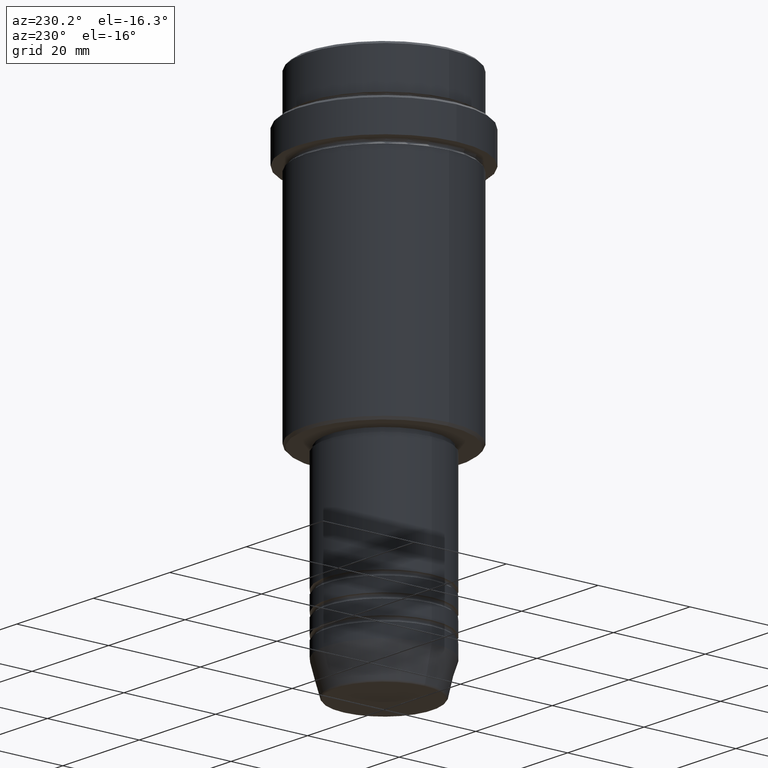
[diagram: clean part render]
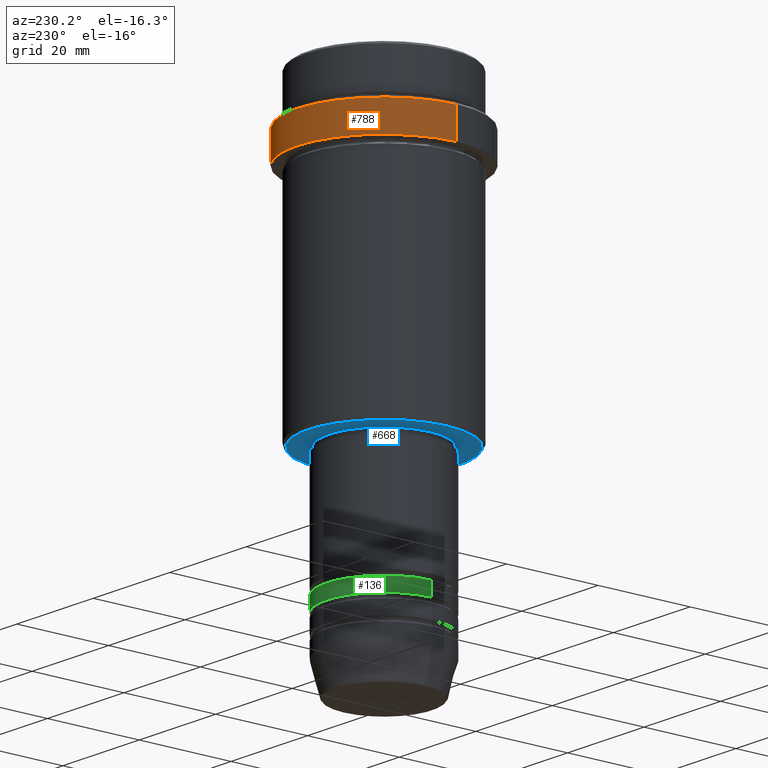
[diagram: same view with three faces highlighted in distinct colors, each labeled with its STEP entity id]
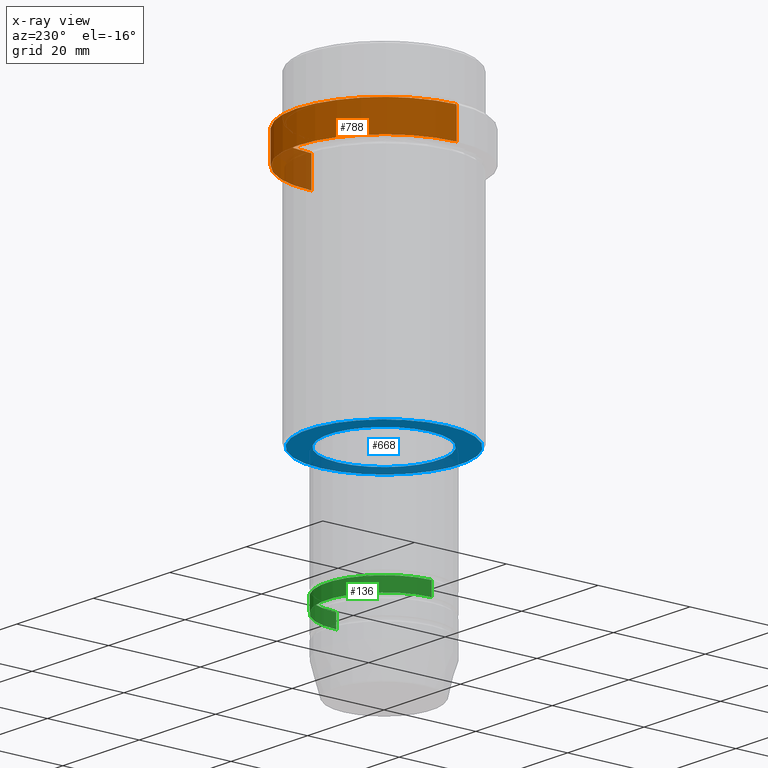
[diagram: x-ray of the same camera — body ghosted, the three highlighted faces saturated]
A machine part, auxiliary view with three faces highlighted in distinct colors.
The next image is the same camera in x-ray (body ghosted, the three faces saturated) — at least one of them is partly hidden behind the body in this view.
Their STEP definitions:

[orange] entity #788 — the highlighted cylindrical surface (partial cylindrical patch) has radius 19 mm, axis along (-0, -0, 1).
#2 = VECTOR ( 'NONE', #470, 1000.000000000000000 ) ;
#49 = DIRECTION ( 'NONE',  ( 1.000000000000000000, 0.000000000000000000, 0.000000000000000000 ) ) ;
#52 = VECTOR ( 'NONE', #594, 1000.000000000000000 ) ;
#113 = ORIENTED_EDGE ( 'NONE', *, *, #487, .T. ) ;
#226 = CARTESIAN_POINT ( 'NONE',  ( 18.99999999999999289, 0.000000000000000000, -17.00000000000000000 ) ) ;
#255 = CARTESIAN_POINT ( 'NONE',  ( 18.99999999999999289, 0.000000000000000000, 0.000000000000000000 ) ) ;
#285 = EDGE_CURVE ( 'NONE', #520, #1102, #1239, .T. ) ;
#317 = CIRCLE ( 'NONE', #1135, 18.99999999999999289 ) ;
#400 = CARTESIAN_POINT ( 'NONE',  ( -18.99999999999999289, 2.326828918379970182E-15, 0.000000000000000000 ) ) ;
#405 = DIRECTION ( 'NONE',  ( 1.000000000000000000, 0.000000000000000000, 0.000000000000000000 ) ) ;
#414 = EDGE_CURVE ( 'NONE', #520, #456, #317, .T. ) ;
#456 = VERTEX_POINT ( 'NONE', #796 ) ;
#470 = DIRECTION ( 'NONE',  ( -0.000000000000000000, -0.000000000000000000, 1.000000000000000000 ) ) ;
#478 = AXIS2_PLACEMENT_3D ( 'NONE', #490, #1058, #405 ) ;
#487 = EDGE_CURVE ( 'NONE', #456, #1170, #1166, .T. ) ;
#490 = CARTESIAN_POINT ( 'NONE',  ( 0.000000000000000000, 0.000000000000000000, -10.49999999999998224 ) ) ;
#520 = VERTEX_POINT ( 'NONE', #226 ) ;
#530 = ORIENTED_EDGE ( 'NONE', *, *, #916, .T. ) ;
#533 = CIRCLE ( 'NONE', #478, 18.99999999999999289 ) ;
#594 = DIRECTION ( 'NONE',  ( -0.000000000000000000, -0.000000000000000000, 1.000000000000000000 ) ) ;
#626 = CARTESIAN_POINT ( 'NONE',  ( -18.99999999999999289, 2.326828918379970182E-15, -10.49999999999998224 ) ) ;
#635 = DIRECTION ( 'NONE',  ( -0.000000000000000000, -0.000000000000000000, 1.000000000000000000 ) ) ;
#661 = CARTESIAN_POINT ( 'NONE',  ( 18.99999999999999289, 0.000000000000000000, -10.49999999999998224 ) ) ;
#748 = CARTESIAN_POINT ( 'NONE',  ( 0.000000000000000000, 0.000000000000000000, -17.00000000000000000 ) ) ;
#788 = ADVANCED_FACE ( 'NONE', ( #1350 ), #1143, .T. ) ;
#793 = CARTESIAN_POINT ( 'NONE',  ( 0.000000000000000000, 0.000000000000000000, 0.000000000000000000 ) ) ;
#796 = CARTESIAN_POINT ( 'NONE',  ( -18.99999999999999289, 2.326828918379970182E-15, -17.00000000000000000 ) ) ;
#916 = EDGE_CURVE ( 'NONE', #1170, #1102, #533, .T. ) ;
#1058 = DIRECTION ( 'NONE',  ( 0.000000000000000000, 0.000000000000000000, -1.000000000000000000 ) ) ;
#1079 = ORIENTED_EDGE ( 'NONE', *, *, #285, .F. ) ;
#1102 = VERTEX_POINT ( 'NONE', #661 ) ;
#1135 = AXIS2_PLACEMENT_3D ( 'NONE', #748, #635, #1201 ) ;
#1143 = CYLINDRICAL_SURFACE ( 'NONE', #1157, 18.99999999999999289 ) ;
#1150 = DIRECTION ( 'NONE',  ( -0.000000000000000000, -0.000000000000000000, 1.000000000000000000 ) ) ;
#1157 = AXIS2_PLACEMENT_3D ( 'NONE', #793, #1150, #49 ) ;
#1165 = ORIENTED_EDGE ( 'NONE', *, *, #414, .T. ) ;
#1166 = LINE ( 'NONE', #400, #52 ) ;
#1170 = VERTEX_POINT ( 'NONE', #626 ) ;
#1201 = DIRECTION ( 'NONE',  ( 1.000000000000000000, 0.000000000000000000, 0.000000000000000000 ) ) ;
#1239 = LINE ( 'NONE', #255, #2 ) ;
#1322 = EDGE_LOOP ( 'NONE', ( #1165, #113, #530, #1079 ) ) ;
#1350 = FACE_OUTER_BOUND ( 'NONE', #1322, .T. ) ;

[blue] entity #668 — the highlighted planar face has unit normal (0, 0, -1).
#35 = CARTESIAN_POINT ( 'NONE',  ( 11.99999999999999289, 0.000000000000000000, -66.00000000000000000 ) ) ;
#45 = CARTESIAN_POINT ( 'NONE',  ( 0.000000000000000000, 0.000000000000000000, -66.00000000000000000 ) ) ;
#58 = EDGE_CURVE ( 'NONE', #1375, #200, #947, .T. ) ;
#103 = DIRECTION ( 'NONE',  ( -1.000000000000000000, 0.000000000000000000, 0.000000000000000000 ) ) ;
#135 = PLANE ( 'NONE',  #475 ) ;
#138 = DIRECTION ( 'NONE',  ( -1.000000000000000000, 0.000000000000000000, 0.000000000000000000 ) ) ;
#143 = DIRECTION ( 'NONE',  ( -0.000000000000000000, -0.000000000000000000, 1.000000000000000000 ) ) ;
#144 = CIRCLE ( 'NONE', #1105, 16.49999999999997158 ) ;
#200 = VERTEX_POINT ( 'NONE', #35 ) ;
#233 = CIRCLE ( 'NONE', #1069, 11.99999999999999289 ) ;
#287 = ORIENTED_EDGE ( 'NONE', *, *, #736, .T. ) ;
#293 = AXIS2_PLACEMENT_3D ( 'NONE', #45, #143, #1019 ) ;
#322 = FACE_OUTER_BOUND ( 'NONE', #768, .T. ) ;
#401 = ORIENTED_EDGE ( 'NONE', *, *, #58, .T. ) ;
#427 = CARTESIAN_POINT ( 'NONE',  ( -16.49999999999997158, 2.051283388571814915E-15, -66.00000000000000000 ) ) ;
#443 = DIRECTION ( 'NONE',  ( -1.000000000000000000, 0.000000000000000000, -0.000000000000000000 ) ) ;
#457 = EDGE_CURVE ( 'NONE', #1008, #711, #731, .T. ) ;
#475 = AXIS2_PLACEMENT_3D ( 'NONE', #643, #1006, #443 ) ;
#578 = CARTESIAN_POINT ( 'NONE',  ( -11.99999999999999289, 1.469576158976823158E-15, -66.00000000000000000 ) ) ;
#640 = ORIENTED_EDGE ( 'NONE', *, *, #1020, .T. ) ;
#643 = CARTESIAN_POINT ( 'NONE',  ( 0.000000000000000000, 17.00000000000000000, -66.00000000000000000 ) ) ;
#662 = FACE_BOUND ( 'NONE', #789, .T. ) ;
#668 = ADVANCED_FACE ( 'NONE', ( #322, #662 ), #135, .T. ) ;
#670 = CARTESIAN_POINT ( 'NONE',  ( 16.49999999999997158, 0.000000000000000000, -66.00000000000000000 ) ) ;
#693 = DIRECTION ( 'NONE',  ( 0.000000000000000000, 0.000000000000000000, -1.000000000000000000 ) ) ;
#711 = VERTEX_POINT ( 'NONE', #427 ) ;
#731 = CIRCLE ( 'NONE', #841, 16.49999999999997158 ) ;
#736 = EDGE_CURVE ( 'NONE', #200, #1375, #233, .T. ) ;
#764 = ORIENTED_EDGE ( 'NONE', *, *, #457, .T. ) ;
#768 = EDGE_LOOP ( 'NONE', ( #764, #640 ) ) ;
#789 = EDGE_LOOP ( 'NONE', ( #287, #401 ) ) ;
#841 = AXIS2_PLACEMENT_3D ( 'NONE', #1163, #693, #103 ) ;
#889 = DIRECTION ( 'NONE',  ( 1.000000000000000000, 0.000000000000000000, 0.000000000000000000 ) ) ;
#901 = CARTESIAN_POINT ( 'NONE',  ( 0.000000000000000000, 0.000000000000000000, -66.00000000000000000 ) ) ;
#947 = CIRCLE ( 'NONE', #293, 11.99999999999999289 ) ;
#1006 = DIRECTION ( 'NONE',  ( 0.000000000000000000, 0.000000000000000000, -1.000000000000000000 ) ) ;
#1008 = VERTEX_POINT ( 'NONE', #670 ) ;
#1019 = DIRECTION ( 'NONE',  ( 1.000000000000000000, 0.000000000000000000, 0.000000000000000000 ) ) ;
#1020 = EDGE_CURVE ( 'NONE', #711, #1008, #144, .T. ) ;
#1023 = DIRECTION ( 'NONE',  ( 0.000000000000000000, 0.000000000000000000, -1.000000000000000000 ) ) ;
#1069 = AXIS2_PLACEMENT_3D ( 'NONE', #1099, #1414, #889 ) ;
#1099 = CARTESIAN_POINT ( 'NONE',  ( 0.000000000000000000, 0.000000000000000000, -66.00000000000000000 ) ) ;
#1105 = AXIS2_PLACEMENT_3D ( 'NONE', #901, #1023, #138 ) ;
#1163 = CARTESIAN_POINT ( 'NONE',  ( 0.000000000000000000, 0.000000000000000000, -66.00000000000000000 ) ) ;
#1375 = VERTEX_POINT ( 'NONE', #578 ) ;
#1414 = DIRECTION ( 'NONE',  ( -0.000000000000000000, -0.000000000000000000, 1.000000000000000000 ) ) ;

[green] entity #136 — the highlighted cylindrical surface (partial cylindrical patch) has radius 12.5 mm, axis along (-0, -0, 1).
#24 = DIRECTION ( 'NONE',  ( -0.000000000000000000, -0.000000000000000000, 1.000000000000000000 ) ) ;
#41 = DIRECTION ( 'NONE',  ( 1.000000000000000000, 0.000000000000000000, 0.000000000000000000 ) ) ;
#88 = VERTEX_POINT ( 'NONE', #1009 ) ;
#123 = CARTESIAN_POINT ( 'NONE',  ( 0.000000000000000000, 0.000000000000000000, -94.99999999999988631 ) ) ;
#136 = ADVANCED_FACE ( 'NONE', ( #1031 ), #1365, .T. ) ;
#141 = CARTESIAN_POINT ( 'NONE',  ( -12.50000000000000000, 1.530808498934191521E-15, -94.99999999999988631 ) ) ;
#152 = LINE ( 'NONE', #1255, #1266 ) ;
#173 = AXIS2_PLACEMENT_3D ( 'NONE', #1118, #24, #1238 ) ;
#210 = CARTESIAN_POINT ( 'NONE',  ( 12.50000000000000000, 0.000000000000000000, 0.000000000000000000 ) ) ;
#257 = AXIS2_PLACEMENT_3D ( 'NONE', #123, #573, #41 ) ;
#271 = VECTOR ( 'NONE', #1090, 1000.000000000000000 ) ;
#328 = ORIENTED_EDGE ( 'NONE', *, *, #1291, .T. ) ;
#351 = DIRECTION ( 'NONE',  ( -0.000000000000000000, -0.000000000000000000, 1.000000000000000000 ) ) ;
#462 = CARTESIAN_POINT ( 'NONE',  ( 12.50000000000000000, 0.000000000000000000, -91.99999999999988631 ) ) ;
#501 = CIRCLE ( 'NONE', #821, 12.50000000000000000 ) ;
#573 = DIRECTION ( 'NONE',  ( -0.000000000000000000, -0.000000000000000000, 1.000000000000000000 ) ) ;
#595 = DIRECTION ( 'NONE',  ( -0.000000000000000000, -0.000000000000000000, 1.000000000000000000 ) ) ;
#619 = ORIENTED_EDGE ( 'NONE', *, *, #986, .F. ) ;
#621 = EDGE_CURVE ( 'NONE', #88, #698, #922, .T. ) ;
#698 = VERTEX_POINT ( 'NONE', #141 ) ;
#795 = DIRECTION ( 'NONE',  ( 1.000000000000000000, 0.000000000000000000, 0.000000000000000000 ) ) ;
#821 = AXIS2_PLACEMENT_3D ( 'NONE', #1361, #595, #795 ) ;
#922 = CIRCLE ( 'NONE', #257, 12.50000000000000000 ) ;
#935 = VERTEX_POINT ( 'NONE', #1283 ) ;
#986 = EDGE_CURVE ( 'NONE', #88, #1073, #1297, .T. ) ;
#1009 = CARTESIAN_POINT ( 'NONE',  ( 12.50000000000000000, 0.000000000000000000, -94.99999999999988631 ) ) ;
#1031 = FACE_OUTER_BOUND ( 'NONE', #1272, .T. ) ;
#1073 = VERTEX_POINT ( 'NONE', #462 ) ;
#1077 = ORIENTED_EDGE ( 'NONE', *, *, #621, .T. ) ;
#1090 = DIRECTION ( 'NONE',  ( -0.000000000000000000, -0.000000000000000000, 1.000000000000000000 ) ) ;
#1118 = CARTESIAN_POINT ( 'NONE',  ( 0.000000000000000000, 0.000000000000000000, 0.000000000000000000 ) ) ;
#1200 = ORIENTED_EDGE ( 'NONE', *, *, #1315, .F. ) ;
#1238 = DIRECTION ( 'NONE',  ( 1.000000000000000000, 0.000000000000000000, 0.000000000000000000 ) ) ;
#1255 = CARTESIAN_POINT ( 'NONE',  ( -12.50000000000000000, 1.530808498934191521E-15, 0.000000000000000000 ) ) ;
#1266 = VECTOR ( 'NONE', #351, 1000.000000000000000 ) ;
#1272 = EDGE_LOOP ( 'NONE', ( #1077, #328, #1200, #619 ) ) ;
#1283 = CARTESIAN_POINT ( 'NONE',  ( -12.50000000000000000, 1.530808498934191521E-15, -91.99999999999988631 ) ) ;
#1291 = EDGE_CURVE ( 'NONE', #698, #935, #152, .T. ) ;
#1297 = LINE ( 'NONE', #210, #271 ) ;
#1315 = EDGE_CURVE ( 'NONE', #1073, #935, #501, .T. ) ;
#1361 = CARTESIAN_POINT ( 'NONE',  ( 0.000000000000000000, 0.000000000000000000, -91.99999999999988631 ) ) ;
#1365 = CYLINDRICAL_SURFACE ( 'NONE', #173, 12.50000000000000000 ) ;